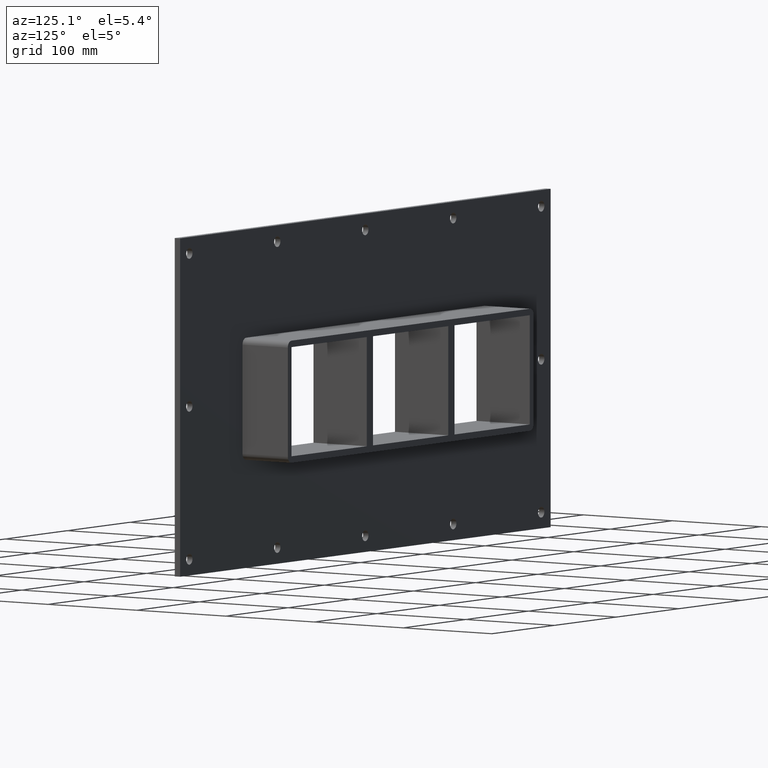
[diagram: clean part render]
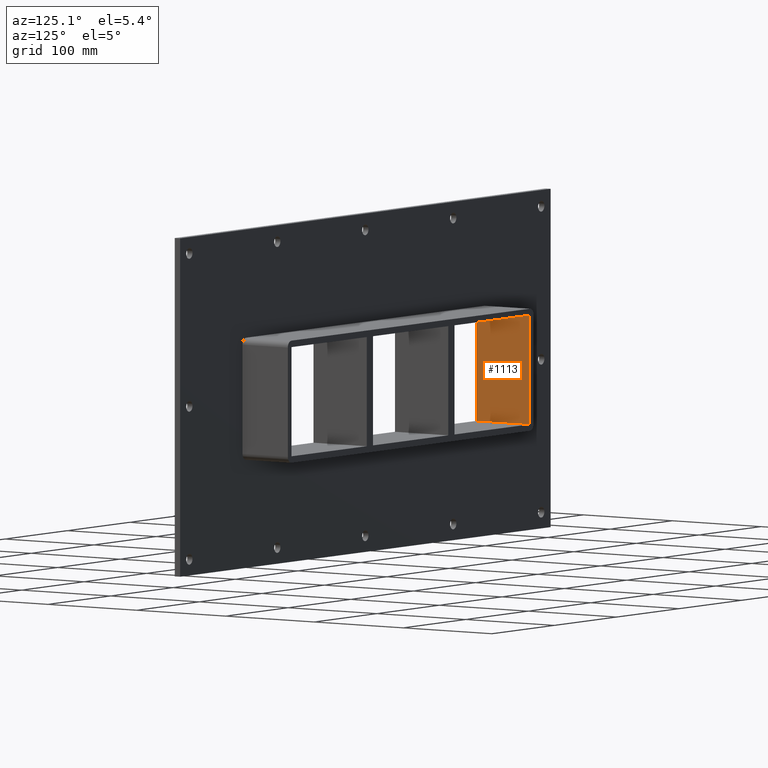
[diagram: same view with one face highlighted and labeled with its STEP entity id]
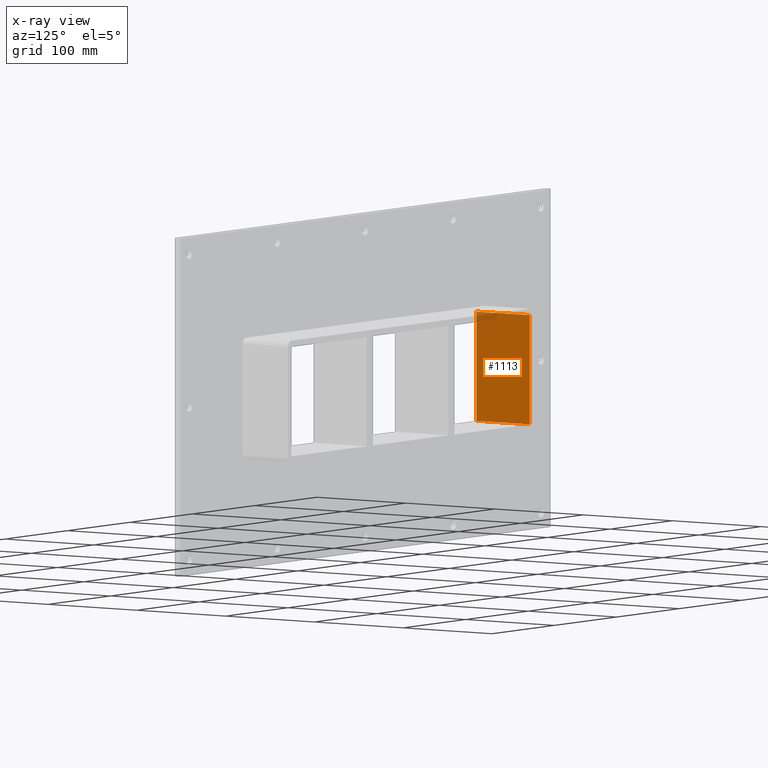
[diagram: x-ray of the same camera — body ghosted, the highlighted face saturated]
A machine part, auxiliary view. The second image highlights one B-rep face of the part: STEP entity #1113.
The next image is the same camera in x-ray: the body ghosted, the highlighted face saturated — about 3% of this face is hidden behind the body in this view.
In plain terms, the highlighted planar face has unit normal (-1, 0, 0).
Its self-contained STEP definition (entity closure, byte-faithful):
#676=CARTESIAN_POINT('',(-190.75,57.0,-50.499999999999986));
#677=VERTEX_POINT('',#676);
#684=CARTESIAN_POINT('',(-190.75,-3.0,-50.499999999999986));
#685=VERTEX_POINT('',#684);
#686=CARTESIAN_POINT('',(-190.75000000000003,-3.0,-50.499999999999986));
#687=DIRECTION('',(0.0,1.0,0.0));
#688=VECTOR('',#687,60.0);
#689=LINE('',#686,#688);
#690=EDGE_CURVE('',#685,#677,#689,.T.);
#707=CARTESIAN_POINT('',(-190.75,-3.0,50.500000000000007));
#708=VERTEX_POINT('',#707);
#715=CARTESIAN_POINT('',(-190.75,57.0,50.500000000000007));
#716=VERTEX_POINT('',#715);
#717=CARTESIAN_POINT('',(-190.75000000000003,-3.0,50.500000000000007));
#718=DIRECTION('',(0.0,1.0,0.0));
#719=VECTOR('',#718,60.0);
#720=LINE('',#717,#719);
#721=EDGE_CURVE('',#708,#716,#720,.T.);
#1092=CARTESIAN_POINT('',(-190.75000000000003,0.0,-50.499999999999986));
#1093=DIRECTION('',(-1.0,0.0,0.0));
#1094=DIRECTION('',(0.0,0.0,1.0));
#1095=AXIS2_PLACEMENT_3D('',#1092,#1093,#1094);
#1096=PLANE('',#1095);
#1097=ORIENTED_EDGE('',*,*,#690,.T.);
#1098=CARTESIAN_POINT('',(-190.75000000000003,57.0,50.500000000000007));
#1099=DIRECTION('',(0.0,0.0,-1.0));
#1100=VECTOR('',#1099,101.0);
#1101=LINE('',#1098,#1100);
#1102=EDGE_CURVE('',#716,#677,#1101,.T.);
#1103=ORIENTED_EDGE('',*,*,#1102,.F.);
#1104=ORIENTED_EDGE('',*,*,#721,.F.);
#1105=CARTESIAN_POINT('',(-190.75000000000003,-3.0,-50.499999999999986));
#1106=DIRECTION('',(0.0,0.0,1.0));
#1107=VECTOR('',#1106,101.0);
#1108=LINE('',#1105,#1107);
#1109=EDGE_CURVE('',#685,#708,#1108,.T.);
#1110=ORIENTED_EDGE('',*,*,#1109,.F.);
#1111=EDGE_LOOP('',(#1097,#1103,#1104,#1110));
#1112=FACE_OUTER_BOUND('',#1111,.T.);
#1113=ADVANCED_FACE('',(#1112),#1096,.F.);